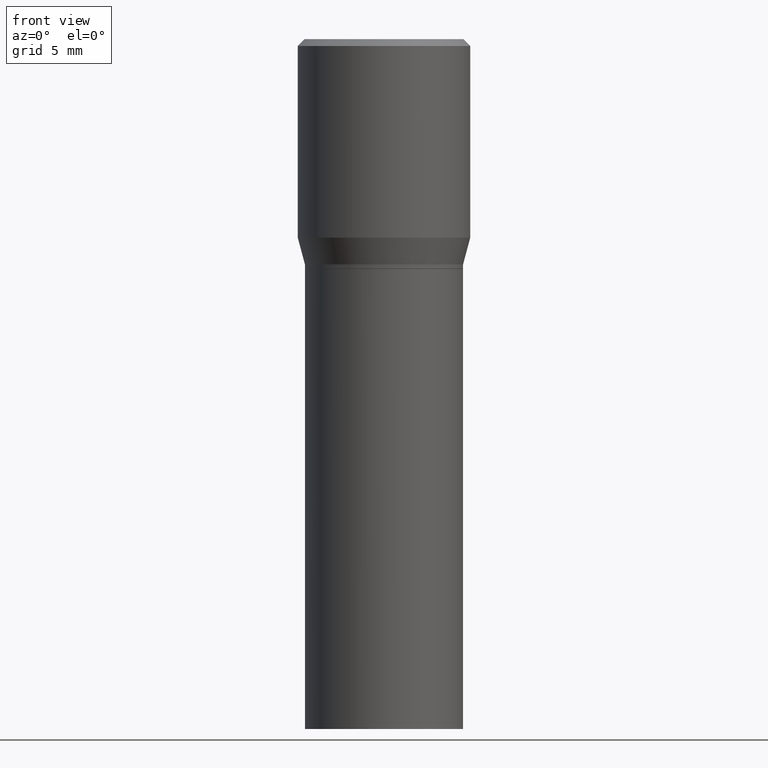
[diagram: clean part render]
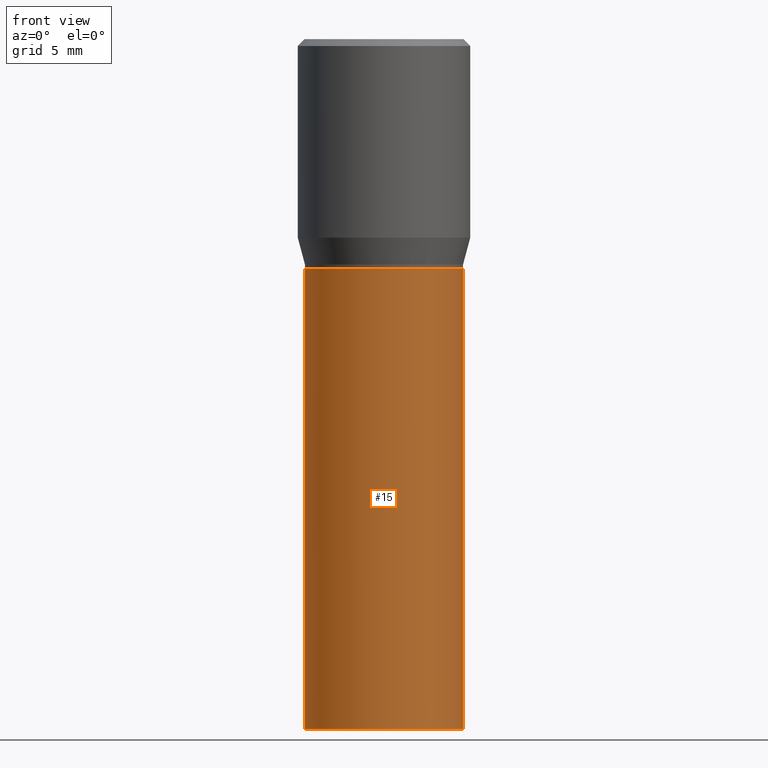
[diagram: same view with one face highlighted and labeled with its STEP entity id]
A machine part, front view. The second image highlights one B-rep face of the part: STEP entity #15.
In plain terms, the highlighted cylindrical surface (partial cylindrical patch) has radius 4.3663 mm, axis along (-0, 0, 1).
Its self-contained STEP definition (entity closure, byte-faithful):
#15 = ADVANCED_FACE ( 'NONE', ( #415 ), #236, .T. ) ;
#21 = CARTESIAN_POINT ( 'NONE',  ( 3.668203209277704895E-29, -5.237222008264718177E-15, -1.500000000000000222 ) ) ;
#35 = VERTEX_POINT ( 'NONE', #68 ) ;
#42 = LINE ( 'NONE', #333, #273 ) ;
#68 = CARTESIAN_POINT ( 'NONE',  ( 0.1718999999999999695, -6.437593292558987418E-15, -1.500000000000000222 ) ) ;
#90 = CARTESIAN_POINT ( 'NONE',  ( 1.222734403092568719E-29, -1.745740669421573186E-15, -0.5000000000000001110 ) ) ;
#102 = ORIENTED_EDGE ( 'NONE', *, *, #305, .T. ) ;
#112 = ORIENTED_EDGE ( 'NONE', *, *, #459, .T. ) ;
#121 = CIRCLE ( 'NONE', #247, 0.1718999999999999695 ) ;
#131 = EDGE_CURVE ( 'NONE', #424, #249, #42, .T. ) ;
#169 = EDGE_CURVE ( 'NONE', #249, #378, #224, .T. ) ;
#174 = DIRECTION ( 'NONE',  ( -2.445468806185136597E-29, 3.491481338843145583E-15, 1.000000000000000000 ) ) ;
#185 = LINE ( 'NONE', #425, #420 ) ;
#201 = CARTESIAN_POINT ( 'NONE',  ( -0.1718999999999999695, -2.270058376071533777E-15, -1.500000000000000222 ) ) ;
#224 = CIRCLE ( 'NONE', #461, 0.1718999999999999695 ) ;
#226 = CARTESIAN_POINT ( 'NONE',  ( -0.1718999999999999695, -2.270058376071533777E-15, -0.5000000000000001110 ) ) ;
#236 = CYLINDRICAL_SURFACE ( 'NONE', #397, 0.1718999999999999695 ) ;
#242 = DIRECTION ( 'NONE',  ( 1.000000000000000000, -6.982962677686266711E-15, 4.876176775795936353E-29 ) ) ;
#244 = ORIENTED_EDGE ( 'NONE', *, *, #169, .F. ) ;
#247 = AXIS2_PLACEMENT_3D ( 'NONE', #21, #174, #416 ) ;
#249 = VERTEX_POINT ( 'NONE', #226 ) ;
#259 = DIRECTION ( 'NONE',  ( 1.000000000000000000, -6.982962677686266711E-15, 0.000000000000000000 ) ) ;
#273 = VECTOR ( 'NONE', #399, 39.37007874015748143 ) ;
#278 = DIRECTION ( 'NONE',  ( -2.445468806185136877E-29, 3.491481338843145188E-15, 1.000000000000000000 ) ) ;
#301 = CARTESIAN_POINT ( 'NONE',  ( 0.1718999999999999695, -2.946111953715842230E-15, -0.5000000000000001110 ) ) ;
#305 = EDGE_CURVE ( 'NONE', #424, #35, #121, .T. ) ;
#333 = CARTESIAN_POINT ( 'NONE',  ( -0.1718999999999999695, 1.221422962771612003E-15, -8.455649420148183180E-30 ) ) ;
#343 = DIRECTION ( 'NONE',  ( -2.445468806185136597E-29, 3.491481338843145583E-15, 1.000000000000000000 ) ) ;
#378 = VERTEX_POINT ( 'NONE', #301 ) ;
#380 = CARTESIAN_POINT ( 'NONE',  ( 0.000000000000000000, 0.000000000000000000, 0.000000000000000000 ) ) ;
#397 = AXIS2_PLACEMENT_3D ( 'NONE', #380, #343, #242 ) ;
#399 = DIRECTION ( 'NONE',  ( -2.445468806185136877E-29, 3.491481338843145188E-15, 1.000000000000000000 ) ) ;
#404 = ORIENTED_EDGE ( 'NONE', *, *, #131, .F. ) ;
#411 = EDGE_LOOP ( 'NONE', ( #404, #102, #112, #244 ) ) ;
#415 = FACE_OUTER_BOUND ( 'NONE', #411, .T. ) ;
#416 = DIRECTION ( 'NONE',  ( 1.000000000000000000, -6.982962677686268288E-15, 0.000000000000000000 ) ) ;
#420 = VECTOR ( 'NONE', #278, 39.37007874015748143 ) ;
#424 = VERTEX_POINT ( 'NONE', #201 ) ;
#425 = CARTESIAN_POINT ( 'NONE',  ( 0.1718999999999999695, -1.200371284294269044E-15, 8.382147877593213079E-30 ) ) ;
#431 = DIRECTION ( 'NONE',  ( -2.445468806185136597E-29, 3.491481338843145583E-15, 1.000000000000000000 ) ) ;
#459 = EDGE_CURVE ( 'NONE', #35, #378, #185, .T. ) ;
#461 = AXIS2_PLACEMENT_3D ( 'NONE', #90, #431, #259 ) ;